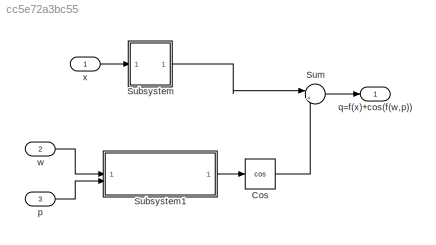
MODEL slx_cc5e72a3bc55
KIND model
CONFIG AbsTol = auto
CONFIG EnableMultiTasking = off
CONFIG FixedStep = auto
CONFIG MaxStep = auto
CONFIG MinStep = auto
CONFIG RelTol = 1e-3
CONFIG SampleTimeConstraint = Unconstrained
CONFIG SolverName = VariableStepAuto
CONFIG StartTime = 0.0
CONFIG StopTime = 10.0
BLOCK [Trigonometry] Cos
  Operator = cos
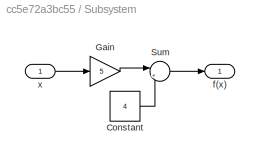
BLOCK [SubSystem] Subsystem
BLOCK [Constant] Subsystem/Constant
  Value = 4
BLOCK [Gain] Subsystem/Gain
  Gain = 5
BLOCK [Sum] Subsystem/Sum
  Inputs = |++
BLOCK [Outport] Subsystem/f(x)
BLOCK [Inport] Subsystem/x
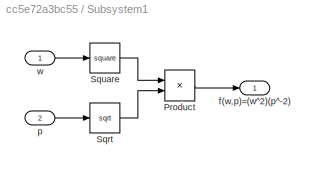
BLOCK [SubSystem] Subsystem1
BLOCK [Product] Subsystem1/Product
BLOCK [Sqrt] Subsystem1/Sqrt
BLOCK [Math] Subsystem1/Square
  Operator = square
BLOCK [Outport] Subsystem1/f(w,p)=(w^2)(p^-2)
BLOCK [Inport] Subsystem1/p
  Port = 2
BLOCK [Inport] Subsystem1/w
BLOCK [Sum] Sum
  Inputs = |++
BLOCK [Inport] p
  Port = 3
BLOCK [Outport] q=f(x)+cos(f(w,p))
BLOCK [Inport] w
  Port = 2
BLOCK [Inport] x
LINE Cos:1 -> Sum:2
LINE Subsystem/Constant:1 -> Subsystem/Sum:2
LINE Subsystem/Gain:1 -> Subsystem/Sum:1
LINE Subsystem/Sum:1 -> Subsystem/f(x):1
LINE Subsystem/x:1 -> Subsystem/Gain:1
LINE Subsystem1/Product:1 -> Subsystem1/f(w,p)=(w^2)(p^-2):1
LINE Subsystem1/Sqrt:1 -> Subsystem1/Product:2
LINE Subsystem1/Square:1 -> Subsystem1/Product:1
LINE Subsystem1/p:1 -> Subsystem1/Sqrt:1
LINE Subsystem1/w:1 -> Subsystem1/Square:1
LINE Subsystem1:1 -> Cos:1
LINE Subsystem:1 -> Sum:1
LINE Sum:1 -> q=f(x)+cos(f(w,p)):1
LINE p:1 -> Subsystem1:2
LINE w:1 -> Subsystem1:1
LINE x:1 -> Subsystem:1
